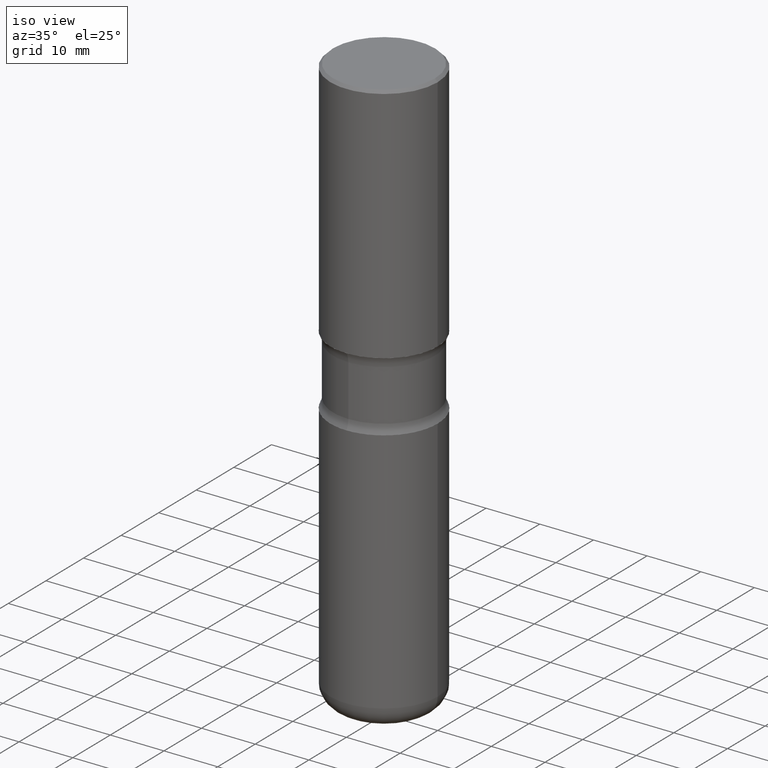
[diagram: clean part render]
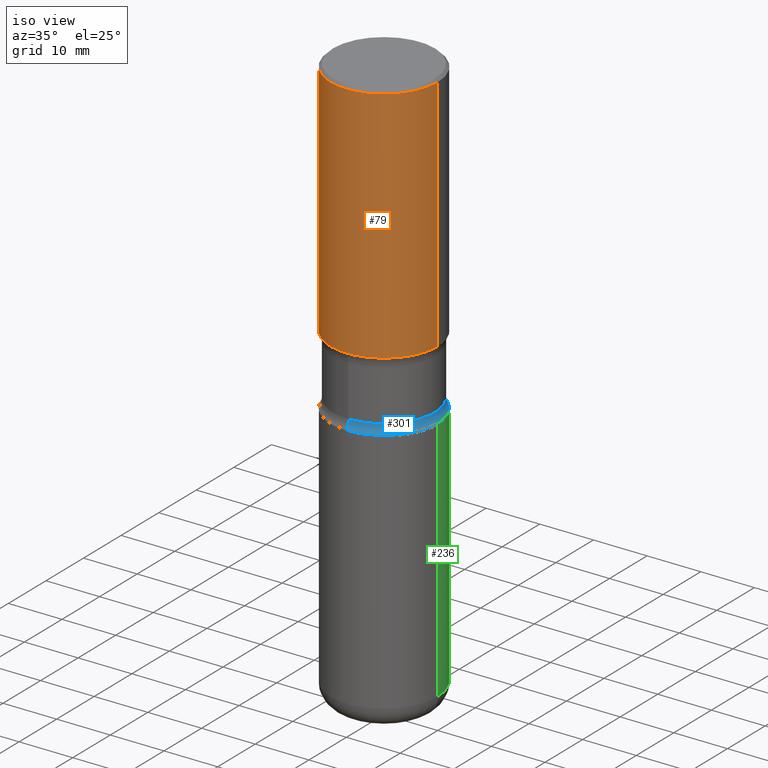
[diagram: same view with three faces highlighted in distinct colors, each labeled with its STEP entity id]
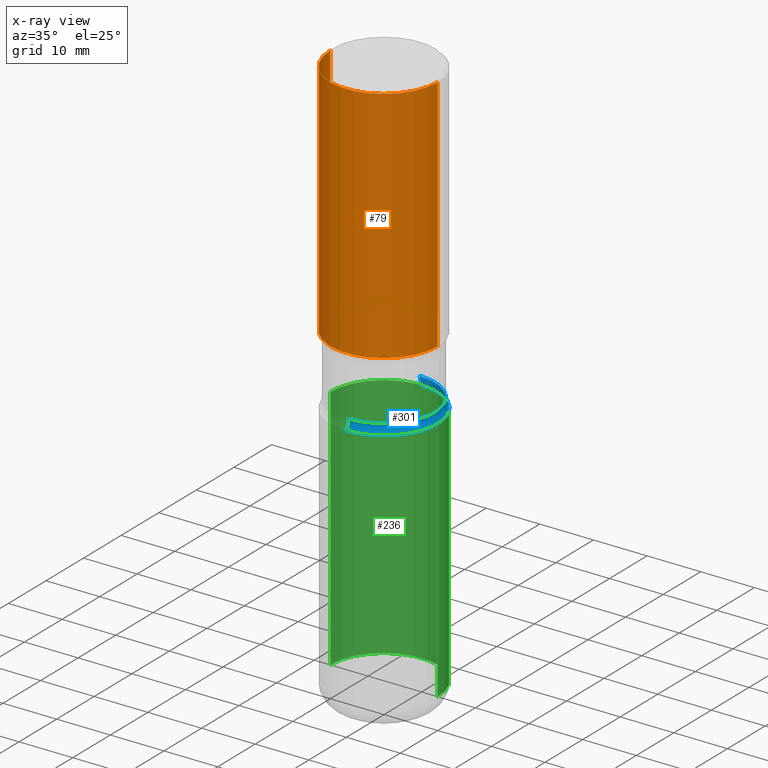
[diagram: x-ray of the same camera — body ghosted, the three highlighted faces saturated]
A machine part, iso view with three faces highlighted in distinct colors.
The next image is the same camera in x-ray (body ghosted, the three faces saturated) — at least one of them is partly hidden behind the body in this view.
Their STEP definitions:

[orange] entity #79 — the highlighted cylindrical surface (partial cylindrical patch) has radius 10 mm, axis along (-0, 0, 1).
#7 = AXIS2_PLACEMENT_3D ( 'NONE', #234, #360, #533 ) ;
#21 = CYLINDRICAL_SURFACE ( 'NONE', #187, 0.3937000000000003830 ) ;
#33 = CARTESIAN_POINT ( 'NONE',  ( 0.000000000000000000, 0.000000000000000000, 0.000000000000000000 ) ) ;
#72 = EDGE_CURVE ( 'NONE', #468, #534, #460, .T. ) ;
#75 = CARTESIAN_POINT ( 'NONE',  ( 0.3937000000000003830, -2.749192406205085978E-15, 1.919750796630861853E-29 ) ) ;
#79 = ADVANCED_FACE ( 'NONE', ( #420 ), #21, .T. ) ;
#81 = CIRCLE ( 'NONE', #332, 0.3937000000000004940 ) ;
#85 = EDGE_CURVE ( 'NONE', #529, #468, #81, .T. ) ;
#110 = CARTESIAN_POINT ( 'NONE',  ( 4.332637083918208108E-29, -6.185857488028402659E-15, -1.771700000000000719 ) ) ;
#139 = ORIENTED_EDGE ( 'NONE', *, *, #560, .F. ) ;
#146 = VERTEX_POINT ( 'NONE', #337 ) ;
#154 = DIRECTION ( 'NONE',  ( -2.445468806185136597E-29, 3.491481338843145583E-15, 1.000000000000000000 ) ) ;
#165 = EDGE_CURVE ( 'NONE', #529, #146, #380, .T. ) ;
#187 = AXIS2_PLACEMENT_3D ( 'NONE', #33, #154, #203 ) ;
#198 = CARTESIAN_POINT ( 'NONE',  ( -0.3937000000000005495, -3.304368067151132125E-16, -1.771700000000000719 ) ) ;
#203 = DIRECTION ( 'NONE',  ( 1.000000000000000000, -6.982962677686266711E-15, 4.876176775795935793E-29 ) ) ;
#216 = ORIENTED_EDGE ( 'NONE', *, *, #85, .T. ) ;
#234 = CARTESIAN_POINT ( 'NONE',  ( 4.890937612370306439E-31, -6.982962677686338448E-17, -0.02000000000000013572 ) ) ;
#245 = DIRECTION ( 'NONE',  ( -2.445468806185136877E-29, 3.491481338843145188E-15, 1.000000000000000000 ) ) ;
#278 = VECTOR ( 'NONE', #245, 39.37007874015748143 ) ;
#284 = ORIENTED_EDGE ( 'NONE', *, *, #165, .F. ) ;
#326 = EDGE_LOOP ( 'NONE', ( #284, #216, #438, #139 ) ) ;
#330 = CARTESIAN_POINT ( 'NONE',  ( 0.3937000000000002164, -2.770807688499516917E-15, -0.02000000000000013572 ) ) ;
#332 = AXIS2_PLACEMENT_3D ( 'NONE', #110, #373, #490 ) ;
#337 = CARTESIAN_POINT ( 'NONE',  ( -0.3937000000000002164, 2.679362779428221496E-15, -0.02000000000000013572 ) ) ;
#360 = DIRECTION ( 'NONE',  ( -2.445468806185136597E-29, 3.491481338843145583E-15, 1.000000000000000000 ) ) ;
#373 = DIRECTION ( 'NONE',  ( -2.445468806185136597E-29, 3.491481338843145583E-15, 1.000000000000000000 ) ) ;
#380 = LINE ( 'NONE', #390, #465 ) ;
#390 = CARTESIAN_POINT ( 'NONE',  ( -0.3937000000000003830, 2.797406750687517153E-15, -1.936584745033358137E-29 ) ) ;
#420 = FACE_OUTER_BOUND ( 'NONE', #326, .T. ) ;
#438 = ORIENTED_EDGE ( 'NONE', *, *, #72, .T. ) ;
#451 = CIRCLE ( 'NONE', #7, 0.3937000000000002164 ) ;
#460 = LINE ( 'NONE', #75, #278 ) ;
#465 = VECTOR ( 'NONE', #549, 39.37007874015748143 ) ;
#468 = VERTEX_POINT ( 'NONE', #496 ) ;
#490 = DIRECTION ( 'NONE',  ( 1.000000000000000000, -6.982962677686269866E-15, 0.000000000000000000 ) ) ;
#496 = CARTESIAN_POINT ( 'NONE',  ( 0.3937000000000004940, -8.935049894233490609E-15, -1.771700000000000719 ) ) ;
#529 = VERTEX_POINT ( 'NONE', #198 ) ;
#533 = DIRECTION ( 'NONE',  ( 1.000000000000000000, -6.982962677686266711E-15, 0.000000000000000000 ) ) ;
#534 = VERTEX_POINT ( 'NONE', #330 ) ;
#549 = DIRECTION ( 'NONE',  ( -2.445468806185136877E-29, 3.491481338843145188E-15, 1.000000000000000000 ) ) ;
#560 = EDGE_CURVE ( 'NONE', #146, #534, #451, .T. ) ;

[blue] entity #301 — the highlighted toroidal blend (fillet) surface has major radius 12.6619 mm and minor (blend) radius 3.175 mm.
#8 = CARTESIAN_POINT ( 'NONE',  ( -2.700978061722598399E-15, -0.3937000000000082656, -2.283499999999999641 ) ) ;
#27 = CIRCLE ( 'NONE', #288, 0.3734999999999999432 ) ;
#30 = CARTESIAN_POINT ( 'NONE',  ( 5.584228018923761589E-29, -7.972797637248326287E-15, -2.283500000000000973 ) ) ;
#65 = DIRECTION ( 'NONE',  ( 6.982962677686265922E-15, 1.000000000000000000, -3.469453890861392023E-15 ) ) ;
#74 = CARTESIAN_POINT ( 'NONE',  ( -3.419958251889054030E-15, -0.4985000000000077147, -2.215368069159900255 ) ) ;
#96 = VERTEX_POINT ( 'NONE', #133 ) ;
#133 = CARTESIAN_POINT ( 'NONE',  ( 2.749192406205141198E-15, 0.3936999999999923894, -2.283500000000002306 ) ) ;
#210 = EDGE_CURVE ( 'NONE', #96, #277, #293, .T. ) ;
#221 = AXIS2_PLACEMENT_3D ( 'NONE', #74, #455, #543 ) ;
#247 = CARTESIAN_POINT ( 'NONE',  ( 3.481006894826658371E-15, 0.4984999999999922826, -2.215368069159903364 ) ) ;
#249 = AXIS2_PLACEMENT_3D ( 'NONE', #260, #483, #314 ) ;
#250 = DIRECTION ( 'NONE',  ( -1.000000000000000000, 6.982962677686265922E-15, -4.883557194083112901E-29 ) ) ;
#260 = CARTESIAN_POINT ( 'NONE',  ( 5.417613507349136293E-29, -7.734916272140768670E-15, -2.215368069159902031 ) ) ;
#270 = CIRCLE ( 'NONE', #221, 0.1249999999999999584 ) ;
#272 = CARTESIAN_POINT ( 'NONE',  ( 2.608136560115873849E-15, 0.3734999999999922271, -2.215368069159903364 ) ) ;
#274 = CARTESIAN_POINT ( 'NONE',  ( 5.419408919749742446E-29, -7.732345139394574102E-15, -2.215368069159902031 ) ) ;
#276 = CARTESIAN_POINT ( 'NONE',  ( -2.631687031945105097E-15, -0.3735000000000076592, -2.215368069159900699 ) ) ;
#277 = VERTEX_POINT ( 'NONE', #272 ) ;
#288 = AXIS2_PLACEMENT_3D ( 'NONE', #274, #347, #521 ) ;
#290 = ORIENTED_EDGE ( 'NONE', *, *, #378, .T. ) ;
#293 = CIRCLE ( 'NONE', #368, 0.1249999999999999584 ) ;
#301 = ADVANCED_FACE ( 'NONE', ( #445 ), #466, .F. ) ;
#314 = DIRECTION ( 'NONE',  ( 6.982962677686265922E-15, 1.000000000000000000, -3.529218897642557802E-15 ) ) ;
#347 = DIRECTION ( 'NONE',  ( 2.419116809720808142E-29, -3.529218897642557802E-15, -1.000000000000000000 ) ) ;
#358 = VERTEX_POINT ( 'NONE', #8 ) ;
#368 = AXIS2_PLACEMENT_3D ( 'NONE', #247, #250, #423 ) ;
#375 = CIRCLE ( 'NONE', #434, 0.3937000000000004385 ) ;
#378 = EDGE_CURVE ( 'NONE', #277, #488, #27, .T. ) ;
#409 = ORIENTED_EDGE ( 'NONE', *, *, #486, .F. ) ;
#423 = DIRECTION ( 'NONE',  ( -6.982962677686265133E-15, -1.000000000000000000, 0.000000000000000000 ) ) ;
#434 = AXIS2_PLACEMENT_3D ( 'NONE', #30, #498, #65 ) ;
#445 = FACE_OUTER_BOUND ( 'NONE', #449, .T. ) ;
#449 = EDGE_LOOP ( 'NONE', ( #409, #540, #532, #290 ) ) ;
#455 = DIRECTION ( 'NONE',  ( 1.000000000000000000, -6.860497997771530774E-15, 4.840336727818230208E-29 ) ) ;
#466 = TOROIDAL_SURFACE ( 'NONE', #249, 0.4984999999999999987, 0.1249999999999999584 ) ;
#476 = EDGE_CURVE ( 'NONE', #96, #358, #375, .T. ) ;
#483 = DIRECTION ( 'NONE',  ( 2.419116809720808142E-29, -3.529218897642557802E-15, -1.000000000000000000 ) ) ;
#486 = EDGE_CURVE ( 'NONE', #358, #488, #270, .T. ) ;
#488 = VERTEX_POINT ( 'NONE', #276 ) ;
#498 = DIRECTION ( 'NONE',  ( 2.419116809720808142E-29, -3.529218897642557802E-15, -1.000000000000000000 ) ) ;
#521 = DIRECTION ( 'NONE',  ( 6.982962677686264344E-15, 1.000000000000000000, -3.657092360996336845E-15 ) ) ;
#532 = ORIENTED_EDGE ( 'NONE', *, *, #210, .T. ) ;
#540 = ORIENTED_EDGE ( 'NONE', *, *, #476, .F. ) ;
#543 = DIRECTION ( 'NONE',  ( 6.860497997771532351E-15, 1.000000000000000000, 0.000000000000000000 ) ) ;

[green] entity #236 — the highlighted cylindrical surface (partial cylindrical patch) has radius 10 mm, axis along (-0, 0, 1).
#12 = CARTESIAN_POINT ( 'NONE',  ( 5.584228018923761589E-29, -7.972797637248326287E-15, -2.283500000000000973 ) ) ;
#36 = AXIS2_PLACEMENT_3D ( 'NONE', #334, #251, #377 ) ;
#46 = AXIS2_PLACEMENT_3D ( 'NONE', #12, #524, #171 ) ;
#55 = VERTEX_POINT ( 'NONE', #162 ) ;
#58 = VERTEX_POINT ( 'NONE', #115 ) ;
#69 = ORIENTED_EDGE ( 'NONE', *, *, #295, .F. ) ;
#70 = DIRECTION ( 'NONE',  ( -2.445468806185136877E-29, 3.491481338843145188E-15, 1.000000000000000000 ) ) ;
#83 = CARTESIAN_POINT ( 'NONE',  ( -0.3937000000000004385, -8.336054368548563224E-15, -2.283500000000000973 ) ) ;
#91 = LINE ( 'NONE', #528, #482 ) ;
#101 = VERTEX_POINT ( 'NONE', #208 ) ;
#115 = CARTESIAN_POINT ( 'NONE',  ( 0.3937000000000004385, -1.072199004345341266E-14, -2.283500000000000973 ) ) ;
#129 = EDGE_LOOP ( 'NONE', ( #478, #220, #69, #177 ) ) ;
#143 = VERTEX_POINT ( 'NONE', #83 ) ;
#150 = EDGE_CURVE ( 'NONE', #101, #55, #472, .T. ) ;
#162 = CARTESIAN_POINT ( 'NONE',  ( -0.3937000000000005495, -1.149671785053631889E-14, -4.094000000000000306 ) ) ;
#168 = FACE_OUTER_BOUND ( 'NONE', #129, .T. ) ;
#171 = DIRECTION ( 'NONE',  ( 1.000000000000000000, -6.982962677686268288E-15, 0.000000000000000000 ) ) ;
#177 = ORIENTED_EDGE ( 'NONE', *, *, #269, .F. ) ;
#188 = CIRCLE ( 'NONE', #46, 0.3937000000000004385 ) ;
#207 = CYLINDRICAL_SURFACE ( 'NONE', #267, 0.3937000000000004940 ) ;
#208 = CARTESIAN_POINT ( 'NONE',  ( 0.3937000000000005495, -1.704331700742892557E-14, -4.094000000000000306 ) ) ;
#220 = ORIENTED_EDGE ( 'NONE', *, *, #447, .T. ) ;
#236 = ADVANCED_FACE ( 'NONE', ( #168 ), #207, .T. ) ;
#241 = LINE ( 'NONE', #459, #539 ) ;
#251 = DIRECTION ( 'NONE',  ( -2.445468806185136597E-29, 3.491481338843145583E-15, 1.000000000000000000 ) ) ;
#267 = AXIS2_PLACEMENT_3D ( 'NONE', #550, #341, #514 ) ;
#269 = EDGE_CURVE ( 'NONE', #101, #58, #91, .T. ) ;
#295 = EDGE_CURVE ( 'NONE', #58, #143, #188, .T. ) ;
#334 = CARTESIAN_POINT ( 'NONE',  ( 1.001174929252194934E-28, -1.429412460122383920E-14, -4.094000000000000306 ) ) ;
#341 = DIRECTION ( 'NONE',  ( -2.445468806185136597E-29, 3.491481338843145583E-15, 1.000000000000000000 ) ) ;
#377 = DIRECTION ( 'NONE',  ( 1.000000000000000000, -6.982962677686266711E-15, 0.000000000000000000 ) ) ;
#447 = EDGE_CURVE ( 'NONE', #55, #143, #241, .T. ) ;
#448 = DIRECTION ( 'NONE',  ( -2.445468806185136877E-29, 3.491481338843145188E-15, 1.000000000000000000 ) ) ;
#459 = CARTESIAN_POINT ( 'NONE',  ( -0.3937000000000004940, 2.797406750687517942E-15, -1.936584745033358697E-29 ) ) ;
#472 = CIRCLE ( 'NONE', #36, 0.3937000000000006605 ) ;
#478 = ORIENTED_EDGE ( 'NONE', *, *, #150, .T. ) ;
#482 = VECTOR ( 'NONE', #448, 39.37007874015748143 ) ;
#514 = DIRECTION ( 'NONE',  ( 1.000000000000000000, -6.982962677686266711E-15, 4.876176775795935793E-29 ) ) ;
#524 = DIRECTION ( 'NONE',  ( -2.445468806185136597E-29, 3.491481338843145583E-15, 1.000000000000000000 ) ) ;
#528 = CARTESIAN_POINT ( 'NONE',  ( 0.3937000000000004940, -2.749192406205086766E-15, 1.919750796630862414E-29 ) ) ;
#539 = VECTOR ( 'NONE', #70, 39.37007874015748143 ) ;
#550 = CARTESIAN_POINT ( 'NONE',  ( 0.000000000000000000, 0.000000000000000000, 0.000000000000000000 ) ) ;